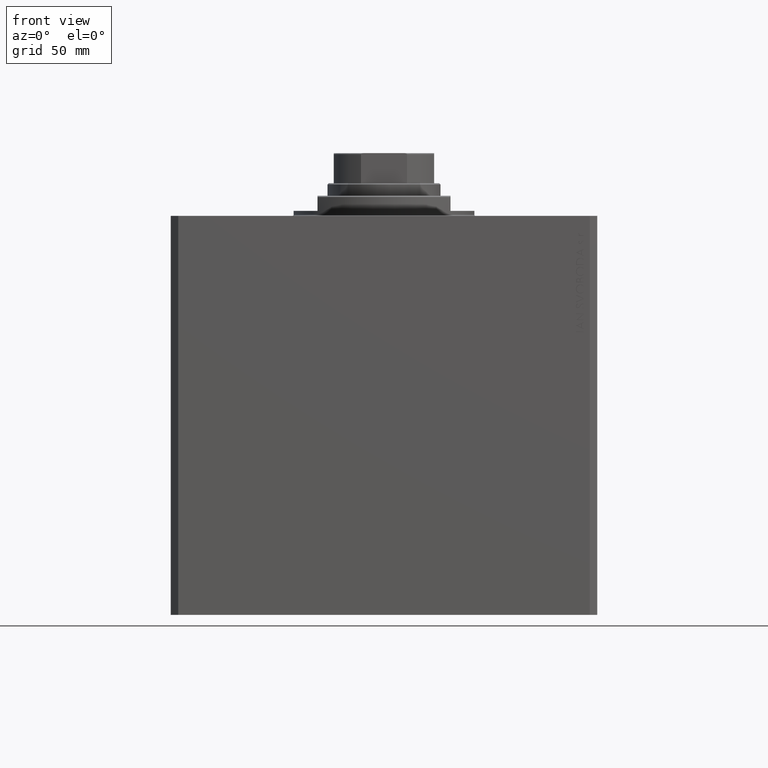
[diagram: clean part render]
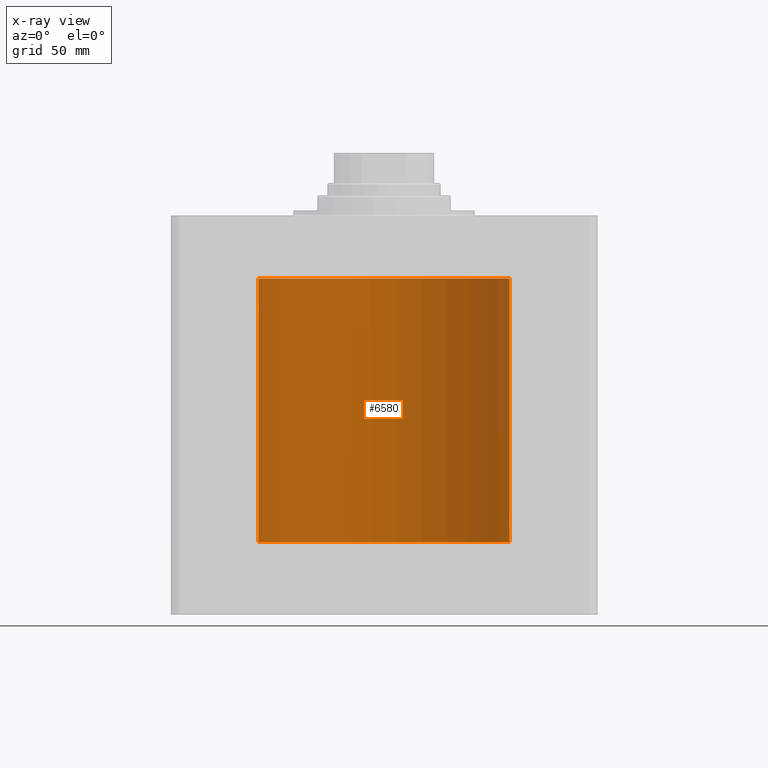
[diagram: x-ray — body ghosted, one internal face saturated and labeled with its STEP entity id]
A machine part, front view, then the same camera in x-ray: the body is ghosted and one INTERNAL B-rep face — a face not visible from any outside direction — is saturated and labeled: STEP entity #6580.
In plain terms, the highlighted cylindrical surface (partial cylindrical patch) has radius 50 mm, axis along (0, 0, 1).
Its self-contained STEP definition (entity closure, byte-faithful):
#99 = VERTEX_POINT ( 'NONE', #40008 ) ;
#124 = CARTESIAN_POINT ( 'NONE',  ( 49.99007528730422933, 1.002097354324908984, -123.7357691082803797 ) ) ;
#917 = DIRECTION ( 'NONE',  ( -0.000000000000000000, -0.000000000000000000, 1.000000000000000000 ) ) ;
#1184 = CARTESIAN_POINT ( 'NONE',  ( -50.00000000000000000, 6.123233989258355553E-15, -38.99999999999999289 ) ) ;
#2326 = DIRECTION ( 'NONE',  ( -0.000000000000000000, -0.000000000000000000, 1.000000000000000000 ) ) ;
#3101 = CARTESIAN_POINT ( 'NONE',  ( -50.00000000000000000, 6.123233995736766085E-15, -130.0999999999999943 ) ) ;
#3115 = CARTESIAN_POINT ( 'NONE',  ( -49.97476780406313424, 1.598950834465297177, -35.77059039179120958 ) ) ;
#3208 = ORIENTED_EDGE ( 'NONE', *, *, #8202, .T. ) ;
#3820 = CARTESIAN_POINT ( 'NONE',  ( -49.98259925701036366, 1.322227939264704055, -35.49376754264949341 ) ) ;
#4180 = LINE ( 'NONE', #12543, #5353 ) ;
#4284 = CARTESIAN_POINT ( 'NONE',  ( -49.98523123236354593, 1.219998263164736807, -38.59015112589698759 ) ) ;
#4515 = CARTESIAN_POINT ( 'NONE',  ( 0.000000000000000000, 0.000000000000000000, -24.99999999999999289 ) ) ;
#4883 = ORIENTED_EDGE ( 'NONE', *, *, #37353, .F. ) ;
#5013 = CARTESIAN_POINT ( 'NONE',  ( -49.97734518528593384, 1.507874855161120076, -38.32050907330479106 ) ) ;
#5353 = VECTOR ( 'NONE', #8505, 1000.000000000000000 ) ;
#5730 = CARTESIAN_POINT ( 'NONE',  ( 49.96051123778291725, 1.986950357331387140, -121.7370861026879680 ) ) ;
#6147 = DIRECTION ( 'NONE',  ( -0.000000000000000000, -0.000000000000000000, 1.000000000000000000 ) ) ;
#6444 = CARTESIAN_POINT ( 'NONE',  ( 49.99229103891970993, 0.8862970221311291530, -120.2023134001857159 ) ) ;
#6580 = ADVANCED_FACE ( 'NONE', ( #32035 ), #39435, .F. ) ;
#6828 = CARTESIAN_POINT ( 'NONE',  ( 50.00000000000001421, 0.1321888607815029648, -124.0000000000000568 ) ) ;
#6907 = CARTESIAN_POINT ( 'NONE',  ( 49.99599990398858296, 0.6439560014968555013, -120.1019693915202282 ) ) ;
#7124 = CARTESIAN_POINT ( 'NONE',  ( 0.000000000000000000, 0.000000000000000000, -130.0999999999999943 ) ) ;
#7181 = CARTESIAN_POINT ( 'NONE',  ( -49.96953708402610062, 1.747948211813102892, -35.99374183287712725 ) ) ;
#7409 = CARTESIAN_POINT ( 'NONE',  ( -49.99947640732126786, 0.2621063239499291098, -35.01297064418641014 ) ) ;
#7651 = CARTESIAN_POINT ( 'NONE',  ( -49.96050770337905789, 1.987038794023258559, -37.26226128698008466 ) ) ;
#7894 = CARTESIAN_POINT ( 'NONE',  ( -49.99748258676788026, 0.5177602892975206039, -35.06378986968200451 ) ) ;
#7984 = EDGE_LOOP ( 'NONE', ( #4883, #38221, #3208, #42110, #13084, #44971, #13706, #31352, #14351 ) ) ;
#8146 = EDGE_CURVE ( 'NONE', #33222, #24142, #21568, .T. ) ;
#8202 = EDGE_CURVE ( 'NONE', #99, #37180, #17331, .T. ) ;
#8505 = DIRECTION ( 'NONE',  ( -0.000000000000000000, -0.000000000000000000, 1.000000000000000000 ) ) ;
#8838 = CARTESIAN_POINT ( 'NONE',  ( -49.99004874905787688, 1.003375892571688910, -38.73499659467171341 ) ) ;
#9072 = EDGE_CURVE ( 'NONE', #99, #24254, #20719, .T. ) ;
#9333 = CARTESIAN_POINT ( 'NONE',  ( 49.95998398718716516, 2.000000000000563549, -122.0000000000000000 ) ) ;
#9814 = CARTESIAN_POINT ( 'NONE',  ( 49.95998398718716516, 2.000000000000563549, -122.0000000000000000 ) ) ;
#9826 = CARTESIAN_POINT ( 'NONE',  ( -50.00000000000000000, 6.123233989258355553E-15, -38.99999999999999289 ) ) ;
#10417 = CARTESIAN_POINT ( 'NONE',  ( 49.98259270595344361, 1.322475809934058111, -123.5060172839779113 ) ) ;
#10645 = CARTESIAN_POINT ( 'NONE',  ( 49.96952841668770162, 1.748193601366643479, -123.0058470866195250 ) ) ;
#10727 = CARTESIAN_POINT ( 'NONE',  ( 49.99947219664575471, 0.2630509640965526530, -120.0130747777099316 ) ) ;
#10764 = CARTESIAN_POINT ( 'NONE',  ( -49.99598898362840771, 0.6447919409892277631, -35.10225615370830354 ) ) ;
#10832 = AXIS2_PLACEMENT_3D ( 'NONE', #33382, #917, #40784 ) ;
#11125 = CARTESIAN_POINT ( 'NONE',  ( 49.98524326844813004, 1.219541607305973274, -123.5905382022621239 ) ) ;
#12287 = VERTEX_POINT ( 'NONE', #39597 ) ;
#12543 = CARTESIAN_POINT ( 'NONE',  ( -50.00000000000000000, 6.123233995736766085E-15, -130.0999999999999943 ) ) ;
#13084 = ORIENTED_EDGE ( 'NONE', *, *, #40848, .T. ) ;
#13133 = CARTESIAN_POINT ( 'NONE',  ( 49.96993720661966876, 1.735115303979041013, -120.9968286013222496 ) ) ;
#13358 = EDGE_CURVE ( 'NONE', #12287, #24142, #20489, .T. ) ;
#13706 = ORIENTED_EDGE ( 'NONE', *, *, #8146, .T. ) ;
#14351 = ORIENTED_EDGE ( 'NONE', *, *, #25344, .T. ) ;
#14811 = CARTESIAN_POINT ( 'NONE',  ( -49.96992887184637055, 1.735355026673580214, -38.00276062309308855 ) ) ;
#14938 = CARTESIAN_POINT ( 'NONE',  ( 49.97475955401470316, 1.599209500590069943, -123.2290851407538526 ) ) ;
#15031 = DIRECTION ( 'NONE',  ( 0.000000000000000000, 0.000000000000000000, 1.000000000000000000 ) ) ;
#15763 = CARTESIAN_POINT ( 'NONE',  ( -49.99947195246410558, 0.2631107820817846776, -38.98691922436691470 ) ) ;
#16903 = CARTESIAN_POINT ( 'NONE',  ( 50.00000000000000000, 0.000000000000000000, -130.0999999999999943 ) ) ;
#16966 = VECTOR ( 'NONE', #39284, 1000.000000000000000 ) ;
#17117 = CARTESIAN_POINT ( 'NONE',  ( 50.00000000000000000, 4.564789087886820642E-17, -124.0000000000000000 ) ) ;
#17331 = LINE ( 'NONE', #35232, #16966 ) ;
#17581 = CARTESIAN_POINT ( 'NONE',  ( 50.00000000000000000, 4.564789087886820642E-17, -124.0000000000000000 ) ) ;
#17694 = CARTESIAN_POINT ( 'NONE',  ( -49.96216141728076821, 1.947404903100933504, -36.47512611661414184 ) ) ;
#17819 = CARTESIAN_POINT ( 'NONE',  ( 49.99227494580976838, 0.8871990329080465809, -123.7972405769405668 ) ) ;
#18405 = CARTESIAN_POINT ( 'NONE',  ( -49.96768660357033554, 1.798001154690308967, -37.88564223843271606 ) ) ;
#19404 = VECTOR ( 'NONE', #2326, 1000.000000000000000 ) ;
#20489 = LINE ( 'NONE', #27654, #19404 ) ;
#20719 = CIRCLE ( 'NONE', #26062, 50.00000000000000000 ) ;
#21012 = CARTESIAN_POINT ( 'NONE',  ( 49.98523696312182096, 1.219762141829697999, -120.4096701367431876 ) ) ;
#21568 = CIRCLE ( 'NONE', #24600, 50.00000000000000000 ) ;
#21983 = CARTESIAN_POINT ( 'NONE',  ( -49.99227820941651146, 0.8870121366447422107, -35.20266925059756602 ) ) ;
#22221 = CARTESIAN_POINT ( 'NONE',  ( -49.97474787754178749, 1.590541763713786860, -38.21949285922860184 ) ) ;
#22457 = CARTESIAN_POINT ( 'NONE',  ( -49.99599814809604226, 0.6440968921210813436, -38.89798495722402549 ) ) ;
#23370 = CARTESIAN_POINT ( 'NONE',  ( 50.00000000000000000, -6.476745247090812175E-24, -120.0000000000000000 ) ) ;
#23887 = CARTESIAN_POINT ( 'NONE',  ( 49.96251892914505532, 1.935809163618958051, -121.4806366185916033 ) ) ;
#24142 = VERTEX_POINT ( 'NONE', #40865 ) ;
#24206 = VERTEX_POINT ( 'NONE', #9814 ) ;
#24254 = VERTEX_POINT ( 'NONE', #3101 ) ;
#24600 = AXIS2_PLACEMENT_3D ( 'NONE', #4515, #15031, #26723 ) ;
#24980 = CARTESIAN_POINT ( 'NONE',  ( 49.95998398718717937, 2.000000000000562217, -122.2609875752831243 ) ) ;
#25344 = EDGE_CURVE ( 'NONE', #12287, #34473, #38635, .T. ) ;
#25789 = CARTESIAN_POINT ( 'NONE',  ( -49.96251288907240706, 1.935964606501246799, -37.51879205273049678 ) ) ;
#26062 = AXIS2_PLACEMENT_3D ( 'NONE', #7124, #35526, #28389 ) ;
#26723 = DIRECTION ( 'NONE',  ( 1.000000000000000000, 0.000000000000000000, 0.000000000000000000 ) ) ;
#26764 = CARTESIAN_POINT ( 'NONE',  ( 49.95998398718716516, 2.000000000000564881, -121.8695654969271800 ) ) ;
#27654 = CARTESIAN_POINT ( 'NONE',  ( -50.00000000000000000, 6.123233995736766085E-15, -130.0999999999999943 ) ) ;
#28171 = CARTESIAN_POINT ( 'NONE',  ( 50.00000000000000000, 0.1305077942112368161, -120.0000000000000000 ) ) ;
#28389 = DIRECTION ( 'NONE',  ( 1.000000000000000000, 0.000000000000000000, 0.000000000000000000 ) ) ;
#28874 = CARTESIAN_POINT ( 'NONE',  ( 49.97735290927441554, 1.507618726120014019, -120.6792011185220588 ) ) ;
#28909 = CARTESIAN_POINT ( 'NONE',  ( -49.95998770768563446, 1.999907061972440614, -36.73836523183381786 ) ) ;
#29035 = CARTESIAN_POINT ( 'NONE',  ( 49.99598718814007015, 0.6449352407546056209, -123.8976971177264517 ) ) ;
#30465 = VERTEX_POINT ( 'NONE', #23370 ) ;
#31352 = ORIENTED_EDGE ( 'NONE', *, *, #13358, .F. ) ;
#32035 = FACE_OUTER_BOUND ( 'NONE', #7984, .T. ) ;
#32241 = CARTESIAN_POINT ( 'NONE',  ( -50.00000000000000711, 0.1321588334531834663, -34.99999999999998579 ) ) ;
#32360 = CARTESIAN_POINT ( 'NONE',  ( 49.96215500645249108, 1.947567242801465204, -122.5243005476701086 ) ) ;
#32949 = CARTESIAN_POINT ( 'NONE',  ( -49.99007938266582585, 1.001891274688315958, -35.26411427938287346 ) ) ;
#33222 = VERTEX_POINT ( 'NONE', #40771 ) ;
#33382 = CARTESIAN_POINT ( 'NONE',  ( 0.000000000000000000, 0.000000000000000000, -130.0999999999999943 ) ) ;
#33415 = CARTESIAN_POINT ( 'NONE',  ( -49.98262832829516356, 1.321205413082626068, -38.50726475708437135 ) ) ;
#33898 = CARTESIAN_POINT ( 'NONE',  ( -50.00000000000001421, 0.1305374531515847703, -38.99999999999999289 ) ) ;
#34473 = VERTEX_POINT ( 'NONE', #9826 ) ;
#35232 = CARTESIAN_POINT ( 'NONE',  ( 50.00000000000000000, 0.000000000000000000, -130.0999999999999943 ) ) ;
#35526 = DIRECTION ( 'NONE',  ( 0.000000000000000000, 0.000000000000000000, 1.000000000000000000 ) ) ;
#37180 = VERTEX_POINT ( 'NONE', #17117 ) ;
#37277 = EDGE_CURVE ( 'NONE', #37180, #24206, #40024, .T. ) ;
#37353 = EDGE_CURVE ( 'NONE', #24254, #34473, #4180, .T. ) ;
#38221 = ORIENTED_EDGE ( 'NONE', *, *, #9072, .F. ) ;
#38441 = CARTESIAN_POINT ( 'NONE',  ( 49.96398801900035380, 1.898003203340656198, -121.3559911791024462 ) ) ;
#38635 = B_SPLINE_CURVE_WITH_KNOTS ( 'NONE', 3,
 ( #39637, #32241, #7409, #7894, #10764, #21983, #32949, #47025, #3820, #3115, #7181, #17694, #28909, #46792, #7651, #25789, #39877, #18405, #14811, #22221, #5013, #33415, #4284, #8838, #41055, #22457, #40817, #15763, #33898, #1184 ),
 .UNSPECIFIED., .F., .F.,
 ( 4, 2, 2, 2, 2, 2, 2, 2, 2, 2, 2, 2, 2, 2, 4 ),
 ( 1.951448278188071108E-19, 0.0003908460679639682526, 0.0007816921359279362883, 0.001172538203891904324, 0.001563384271855872360, 0.002345076407783809082, 0.003126768543711746021, 0.003517614611675714056, 0.003908460679639682092, 0.004299306747603650128, 0.004690152815567618164, 0.005080998883531586199, 0.005471844951495554235, 0.005862691019459522271, 0.006253537087423490307 ),
 .UNSPECIFIED. ) ;
#38666 = CARTESIAN_POINT ( 'NONE',  ( 49.97475596784978080, 1.590287868744626465, -120.7801793296755051 ) ) ;
#39284 = DIRECTION ( 'NONE',  ( -0.000000000000000000, -0.000000000000000000, 1.000000000000000000 ) ) ;
#39315 = LINE ( 'NONE', #16903, #44189 ) ;
#39370 = CARTESIAN_POINT ( 'NONE',  ( 49.98263500888552358, 1.320952538904951457, -120.4925159043553293 ) ) ;
#39435 = CYLINDRICAL_SURFACE ( 'NONE', #10832, 50.00000000000000000 ) ;
#39597 = CARTESIAN_POINT ( 'NONE',  ( -50.00000000000000000, -9.003882097956092458E-15, -34.99999999999999289 ) ) ;
#39637 = CARTESIAN_POINT ( 'NONE',  ( -50.00000000000000000, -9.003882097956092458E-15, -34.99999999999999289 ) ) ;
#39767 = CARTESIAN_POINT ( 'NONE',  ( 49.99947616946592177, 0.2621653831979099958, -123.9870235173230100 ) ) ;
#39877 = CARTESIAN_POINT ( 'NONE',  ( -49.96398106625520086, 1.898185627324846303, -37.64347622409935212 ) ) ;
#40008 = CARTESIAN_POINT ( 'NONE',  ( 50.00000000000000000, 0.000000000000000000, -130.0999999999999943 ) ) ;
#40024 = B_SPLINE_CURVE_WITH_KNOTS ( 'NONE', 3,
 ( #17581, #6828, #39767, #43103, #29035, #17819, #124, #11125, #10417, #14938, #10645, #32360, #24980, #46911 ),
 .UNSPECIFIED., .F., .F.,
 ( 4, 2, 2, 2, 2, 2, 4 ),
 ( 4.436058941706983627E-20, 0.0003909348706788073262, 0.0007818697413576145439, 0.001172804612036421924, 0.001563739482715229088, 0.002345609224072873773, 0.003127478965430518024 ),
 .UNSPECIFIED. ) ;
#40771 = CARTESIAN_POINT ( 'NONE',  ( 50.00000000000000000, 0.000000000000000000, -24.99999999999999289 ) ) ;
#40784 = DIRECTION ( 'NONE',  ( 1.000000000000000000, 0.000000000000000000, 0.000000000000000000 ) ) ;
#40817 = CARTESIAN_POINT ( 'NONE',  ( -49.99746633848589283, 0.5194059499681270564, -38.93579253716512767 ) ) ;
#40848 = EDGE_CURVE ( 'NONE', #24206, #30465, #40946, .T. ) ;
#40865 = CARTESIAN_POINT ( 'NONE',  ( -50.00000000000000000, 6.123233995736766085E-15, -24.99999999999999289 ) ) ;
#40946 = B_SPLINE_CURVE_WITH_KNOTS ( 'NONE', 3,
 ( #9333, #26764, #5730, #23887, #38441, #45831, #13133, #38666, #28874, #39370, #21012, #43416, #6444, #6907, #43180, #10727, #28171, #42952 ),
 .UNSPECIFIED., .F., .F.,
 ( 4, 2, 2, 2, 2, 2, 2, 2, 4 ),
 ( 0.003127478965430518024, 0.003518236230679781373, 0.003908993495929044722, 0.004299750761178307637, 0.004690508026427571420, 0.005081265291676834335, 0.005472022556926097250, 0.005862779822175361033, 0.006253537087424623948 ),
 .UNSPECIFIED. ) ;
#41055 = CARTESIAN_POINT ( 'NONE',  ( -49.99228773711749341, 0.8864865707480856782, -38.79759541170199100 ) ) ;
#42110 = ORIENTED_EDGE ( 'NONE', *, *, #37277, .T. ) ;
#42245 = EDGE_CURVE ( 'NONE', #30465, #33222, #39315, .T. ) ;
#42952 = CARTESIAN_POINT ( 'NONE',  ( 50.00000000000000000, -6.476745247090812175E-24, -120.0000000000000000 ) ) ;
#43103 = CARTESIAN_POINT ( 'NONE',  ( 49.99748146545037031, 0.5178754880116730464, -123.9361813255629983 ) ) ;
#43180 = CARTESIAN_POINT ( 'NONE',  ( 49.99746746122490038, 0.5192910711913449884, -120.0641786156605804 ) ) ;
#43416 = CARTESIAN_POINT ( 'NONE',  ( 49.99005286890574951, 1.003169031662882960, -120.2648859834236674 ) ) ;
#44189 = VECTOR ( 'NONE', #6147, 1000.000000000000000 ) ;
#44971 = ORIENTED_EDGE ( 'NONE', *, *, #42245, .T. ) ;
#45831 = CARTESIAN_POINT ( 'NONE',  ( 49.96769480970100119, 1.797773714148178881, -121.1139000090266222 ) ) ;
#46792 = CARTESIAN_POINT ( 'NONE',  ( -49.95998213453558634, 2.000046279225707213, -37.12975027192857880 ) ) ;
#46911 = CARTESIAN_POINT ( 'NONE',  ( 49.95998398718716516, 2.000000000000563549, -122.0000000000000000 ) ) ;
#47025 = CARTESIAN_POINT ( 'NONE',  ( -49.98524905102831184, 1.219303128102697586, -35.40928153240807319 ) ) ;